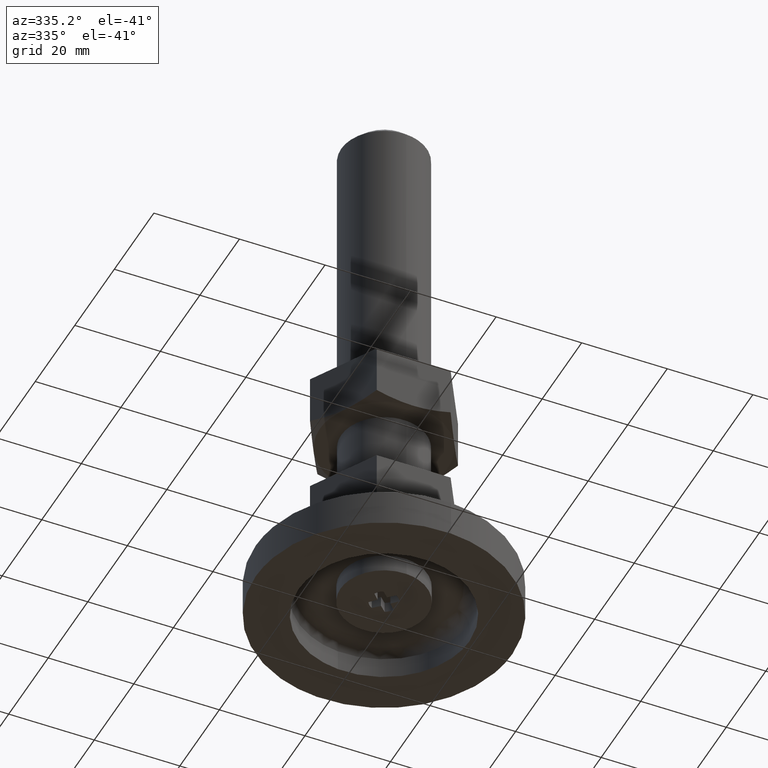
[diagram: clean part render]
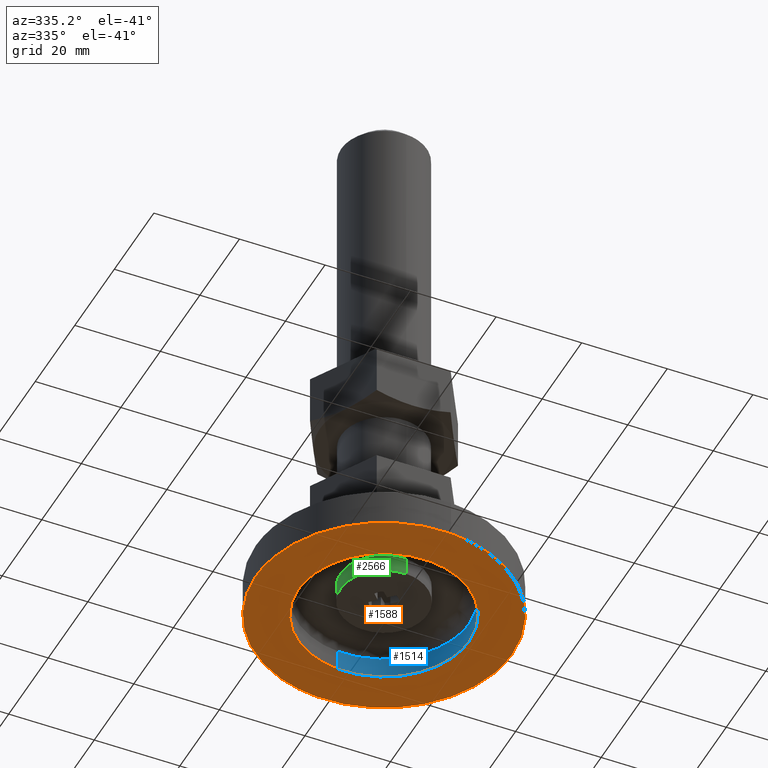
[diagram: same view with three faces highlighted in distinct colors, each labeled with its STEP entity id]
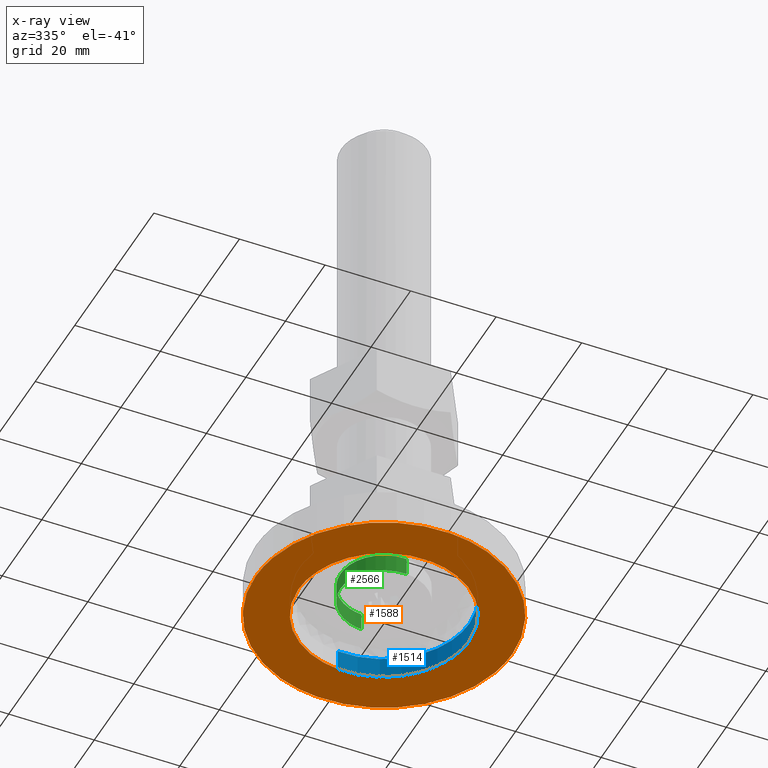
[diagram: x-ray of the same camera — body ghosted, the three highlighted faces saturated]
A machine part, auxiliary view with three faces highlighted in distinct colors.
The next image is the same camera in x-ray (body ghosted, the three faces saturated) — at least one of them is partly hidden behind the body in this view.
Their STEP definitions:

[orange] entity #1588 — the highlighted face is a freeform B-spline surface patch.
#1343=CARTESIAN_POINT('',(-1.831421611323587,29.944046067296529,-6.938894E-016));
#1344=VERTEX_POINT('',#1343);
#1352=CARTESIAN_POINT('',(1.831421611323591,-29.944046067296529,-6.938894E-016));
#1353=VERTEX_POINT('',#1352);
#1359=CARTESIAN_POINT('',(30.0,0.0,0.0));
#1360=VERTEX_POINT('',#1359);
#1361=CARTESIAN_POINT('',(30.0,0.0,0.0));
#1362=CARTESIAN_POINT('',(29.999999999999385,-28.221214653497508,-3.469447E-016));
#1363=CARTESIAN_POINT('',(1.831421611323591,-29.944046067296529,-6.938894E-016));
#1371=(BOUNDED_CURVE()B_SPLINE_CURVE(2,(#1361,#1362,#1363),.UNSPECIFIED.,.F.,.U.)B_SPLINE_CURVE_WITH_KNOTS((3,3),(0.500000000000000,0.739333161472179),.UNSPECIFIED.)CURVE()GEOMETRIC_REPRESENTATION_ITEM()RATIONAL_B_SPLINE_CURVE((1.0,0.719603759870454,0.976072468661841))REPRESENTATION_ITEM(''));
#1372=EDGE_CURVE('',#1360,#1353,#1371,.T.);
#1374=CARTESIAN_POINT('',(-1.831421611323587,29.944046067296526,-6.938894E-016));
#1375=CARTESIAN_POINT('',(-0.916565563124853,29.999999999980322,-6.839180E-016));
#1376=CARTESIAN_POINT('',(1.185255E-012,29.999999999980631,-6.733181E-016));
#1377=CARTESIAN_POINT('',(30.000000000000576,29.999999999990603,-3.263734E-016));
#1378=CARTESIAN_POINT('',(30.0,0.0,0.0));
#1386=(BOUNDED_CURVE()B_SPLINE_CURVE(2,(#1374,#1375,#1376,#1377,#1378),.UNSPECIFIED.,.F.,.U.)B_SPLINE_CURVE_WITH_KNOTS((3,2,3),(0.239333161472179,0.250000000000000,0.500000000000000),.UNSPECIFIED.)CURVE()GEOMETRIC_REPRESENTATION_ITEM()RATIONAL_B_SPLINE_CURVE((0.976072468661841,0.987503021316093,1.0,0.707106781186547,1.0))REPRESENTATION_ITEM(''));
#1387=EDGE_CURVE('',#1344,#1360,#1386,.T.);
#1411=CARTESIAN_POINT('',(-30.0,0.0,0.0));
#1412=VERTEX_POINT('',#1411);
#1413=CARTESIAN_POINT('',(-30.0,0.0,0.0));
#1414=CARTESIAN_POINT('',(-29.999999999999385,28.221214653497508,-3.469447E-016));
#1415=CARTESIAN_POINT('',(-1.831421611323587,29.944046067296526,-6.938894E-016));
#1423=(BOUNDED_CURVE()B_SPLINE_CURVE(2,(#1413,#1414,#1415),.UNSPECIFIED.,.F.,.U.)B_SPLINE_CURVE_WITH_KNOTS((3,3),(0.0,0.239333161472179),.UNSPECIFIED.)CURVE()GEOMETRIC_REPRESENTATION_ITEM()RATIONAL_B_SPLINE_CURVE((1.0,0.719603759870454,0.976072468661841))REPRESENTATION_ITEM(''));
#1424=EDGE_CURVE('',#1412,#1344,#1423,.T.);
#1426=CARTESIAN_POINT('',(1.831421611323591,-29.944046067296529,-6.938894E-016));
#1427=CARTESIAN_POINT('',(0.916565563124852,-29.999999999980322,-6.839180E-016));
#1428=CARTESIAN_POINT('',(-1.191288E-012,-29.999999999980631,-6.733181E-016));
#1429=CARTESIAN_POINT('',(-30.000000000000576,-29.999999999990603,-3.263734E-016));
#1430=CARTESIAN_POINT('',(-30.0,0.0,0.0));
#1438=(BOUNDED_CURVE()B_SPLINE_CURVE(2,(#1426,#1427,#1428,#1429,#1430),.UNSPECIFIED.,.F.,.U.)B_SPLINE_CURVE_WITH_KNOTS((3,2,3),(0.739333161472179,0.750000000000000,1.0),.UNSPECIFIED.)CURVE()GEOMETRIC_REPRESENTATION_ITEM()RATIONAL_B_SPLINE_CURVE((0.976072468661841,0.987503021316093,1.0,0.707106781186547,1.0))REPRESENTATION_ITEM(''));
#1439=EDGE_CURVE('',#1353,#1412,#1438,.T.);
#1466=CARTESIAN_POINT('',(-1.569150497991308,19.938349147150081,-3.191891E-016));
#1467=VERTEX_POINT('',#1466);
#1473=CARTESIAN_POINT('',(20.0,0.0,0.0));
#1474=VERTEX_POINT('',#1473);
#1475=CARTESIAN_POINT('',(-1.569150497991308,19.938349147150078,-3.191891E-016));
#1476=CARTESIAN_POINT('',(-0.785786358973947,19.999999999975689,-3.133928E-016));
#1477=CARTESIAN_POINT('',(1.872432E-012,19.999999999976179,-3.071225E-016));
#1478=CARTESIAN_POINT('',(20.000000000000902,19.999999999988557,-1.475279E-016));
#1479=CARTESIAN_POINT('',(20.0,0.0,0.0));
#1487=(BOUNDED_CURVE()B_SPLINE_CURVE(2,(#1475,#1476,#1477,#1478,#1479),.UNSPECIFIED.,.F.,.U.)B_SPLINE_CURVE_WITH_KNOTS((3,2,3),(0.236331570743911,0.250000000000000,0.500000000000000),.UNSPECIFIED.)CURVE()GEOMETRIC_REPRESENTATION_ITEM()RATIONAL_B_SPLINE_CURVE((0.969723919873852,0.983986439036241,1.0,0.707106781186548,1.0))REPRESENTATION_ITEM(''));
#1488=EDGE_CURVE('',#1467,#1474,#1487,.T.);
#1490=CARTESIAN_POINT('',(1.569150497991308,-19.938349147150081,-1.387779E-017));
#1491=VERTEX_POINT('',#1490);
#1492=CARTESIAN_POINT('',(20.0,0.0,0.0));
#1493=CARTESIAN_POINT('',(19.999999999999034,-18.487839054223780,-6.938894E-018));
#1494=CARTESIAN_POINT('',(1.569150497991307,-19.938349147150074,-1.387779E-017));
#1502=(BOUNDED_CURVE()B_SPLINE_CURVE(2,(#1492,#1493,#1494),.UNSPECIFIED.,.F.,.U.)B_SPLINE_CURVE_WITH_KNOTS((3,3),(0.500000000000000,0.736331570743911),.UNSPECIFIED.)CURVE()GEOMETRIC_REPRESENTATION_ITEM()RATIONAL_B_SPLINE_CURVE((1.0,0.723120342150307,0.969723919873852))REPRESENTATION_ITEM(''));
#1503=EDGE_CURVE('',#1474,#1491,#1502,.T.);
#1537=CARTESIAN_POINT('',(-20.0,0.0,0.0));
#1538=VERTEX_POINT('',#1537);
#1539=CARTESIAN_POINT('',(1.569150497991307,-19.938349147150074,-1.387779E-017));
#1540=CARTESIAN_POINT('',(0.785786358973949,-19.999999999975689,-1.362578E-017));
#1541=CARTESIAN_POINT('',(-1.869655E-012,-19.999999999976179,-1.335315E-017));
#1542=CARTESIAN_POINT('',(-20.000000000000902,-19.999999999988557,-6.414258E-018));
#1543=CARTESIAN_POINT('',(-20.0,0.0,0.0));
#1551=(BOUNDED_CURVE()B_SPLINE_CURVE(2,(#1539,#1540,#1541,#1542,#1543),.UNSPECIFIED.,.F.,.U.)B_SPLINE_CURVE_WITH_KNOTS((3,2,3),(0.736331570743911,0.750000000000000,1.0),.UNSPECIFIED.)CURVE()GEOMETRIC_REPRESENTATION_ITEM()RATIONAL_B_SPLINE_CURVE((0.969723919873852,0.983986439036241,1.0,0.707106781186548,1.0))REPRESENTATION_ITEM(''));
#1552=EDGE_CURVE('',#1491,#1538,#1551,.T.);
#1554=CARTESIAN_POINT('',(-20.0,0.0,0.0));
#1555=CARTESIAN_POINT('',(-19.999999999999030,18.487839054223763,-1.595946E-016));
#1556=CARTESIAN_POINT('',(-1.569150497991308,19.938349147150078,-3.191891E-016));
#1564=(BOUNDED_CURVE()B_SPLINE_CURVE(2,(#1554,#1555,#1556),.UNSPECIFIED.,.F.,.U.)B_SPLINE_CURVE_WITH_KNOTS((3,3),(0.0,0.236331570743911),.UNSPECIFIED.)CURVE()GEOMETRIC_REPRESENTATION_ITEM()RATIONAL_B_SPLINE_CURVE((1.0,0.723120342150307,0.969723919873852))REPRESENTATION_ITEM(''));
#1565=EDGE_CURVE('',#1538,#1467,#1564,.T.);
#1571=CARTESIAN_POINT('',(-32.996999883708362,-32.996261619275778,0.0));
#1572=CARTESIAN_POINT('',(32.997001493033771,-32.996261619275778,0.0));
#1573=CARTESIAN_POINT('',(-32.996999883708362,32.996260546392179,0.0));
#1574=CARTESIAN_POINT('',(32.997001493033771,32.996260546392179,0.0));
#1575=B_SPLINE_SURFACE_WITH_KNOTS('',1,1,((#1571,#1573),(#1572,#1574)),.UNSPECIFIED.,.F.,.F.,.U.,(2,2),(2,2),(0.0,65.994001376742119),(0.0,65.992522165667964),.UNSPECIFIED.);
#1576=ORIENTED_EDGE('',*,*,#1424,.T.);
#1577=ORIENTED_EDGE('',*,*,#1387,.T.);
#1578=ORIENTED_EDGE('',*,*,#1372,.T.);
#1579=ORIENTED_EDGE('',*,*,#1439,.T.);
#1580=EDGE_LOOP('',(#1576,#1577,#1578,#1579));
#1581=FACE_OUTER_BOUND('',#1580,.T.);
#1582=ORIENTED_EDGE('',*,*,#1503,.F.);
#1583=ORIENTED_EDGE('',*,*,#1488,.F.);
#1584=ORIENTED_EDGE('',*,*,#1565,.F.);
#1585=ORIENTED_EDGE('',*,*,#1552,.F.);
#1586=EDGE_LOOP('',(#1582,#1583,#1584,#1585));
#1587=FACE_BOUND('',#1586,.T.);
#1588=ADVANCED_FACE('',(#1581,#1587),#1575,.F.);

[blue] entity #1514 — the highlighted face is a freeform B-spline surface patch.
#1195=CARTESIAN_POINT('',(-1.569150114584247,19.938349177323641,5.000000000271262));
#1196=VERTEX_POINT('',#1195);
#1210=CARTESIAN_POINT('',(19.998420884075149,0.251320797760808,5.000000000582528));
#1211=VERTEX_POINT('',#1210);
#1212=CARTESIAN_POINT('',(-1.569150114584246,19.938349177323648,5.000000000271263));
#1213=CARTESIAN_POINT('',(-0.785786166380793,19.999999999975103,5.000000000282658));
#1214=CARTESIAN_POINT('',(1.920519E-012,19.999999999975600,5.000000000294080));
#1215=CARTESIAN_POINT('',(19.750238598054608,19.999999999988276,5.000000000581196));
#1216=CARTESIAN_POINT('',(19.998420884075149,0.251320797760808,5.000000000582529));
#1224=(BOUNDED_CURVE()B_SPLINE_CURVE(2,(#1212,#1213,#1214,#1215,#1216),.UNSPECIFIED.,.F.,.U.)B_SPLINE_CURVE_WITH_KNOTS((3,2,3),(0.236331574040342,0.250000000000000,0.497784295920904),.UNSPECIFIED.)CURVE()GEOMETRIC_REPRESENTATION_ITEM()RATIONAL_B_SPLINE_CURVE((0.969723926753268,0.983986442898250,1.0,0.709702639985206,0.994854295642115))REPRESENTATION_ITEM(''));
#1225=EDGE_CURVE('',#1196,#1211,#1224,.T.);
#1276=CARTESIAN_POINT('',(20.0,0.0,5.0));
#1277=VERTEX_POINT('',#1276);
#1278=CARTESIAN_POINT('',(19.998420884075149,0.251320797760808,5.000000000582529));
#1279=CARTESIAN_POINT('',(20.0,0.125665359884679,5.000000000291264));
#1280=CARTESIAN_POINT('',(20.0,0.0,5.0));
#1288=(BOUNDED_CURVE()B_SPLINE_CURVE(2,(#1278,#1279,#1280),.UNSPECIFIED.,.F.,.U.)B_SPLINE_CURVE_WITH_KNOTS((3,3),(0.497784295920904,0.500000000000000),.UNSPECIFIED.)CURVE()GEOMETRIC_REPRESENTATION_ITEM()RATIONAL_B_SPLINE_CURVE((0.994854295642115,0.997404141201342,1.0))REPRESENTATION_ITEM(''));
#1289=EDGE_CURVE('',#1211,#1277,#1288,.T.);
#1291=CARTESIAN_POINT('',(1.569150114584243,-19.938349177323651,5.000000000271262));
#1292=VERTEX_POINT('',#1291);
#1293=CARTESIAN_POINT('',(20.0,0.0,5.0));
#1294=CARTESIAN_POINT('',(19.999999999999005,-18.487839410837001,5.000000000002204));
#1295=CARTESIAN_POINT('',(1.569150114584243,-19.938349177323651,5.000000000271262));
#1303=(BOUNDED_CURVE()B_SPLINE_CURVE(2,(#1293,#1294,#1295),.UNSPECIFIED.,.F.,.U.)B_SPLINE_CURVE_WITH_KNOTS((3,3),(0.500000000000000,0.736331574040342),.UNSPECIFIED.)CURVE()GEOMETRIC_REPRESENTATION_ITEM()RATIONAL_B_SPLINE_CURVE((1.0,0.723120338288297,0.969723926753268))REPRESENTATION_ITEM(''));
#1304=EDGE_CURVE('',#1277,#1292,#1303,.T.);
#1447=CARTESIAN_POINT('',(-1.569181914556897,19.938346674662551,5.125000000597091));
#1448=CARTESIAN_POINT('',(18.369164760105654,21.507528589219444,5.125000000597092));
#1449=CARTESIAN_POINT('',(19.938346674662551,1.569181914556897,5.125000000597091));
#1450=CARTESIAN_POINT('',(21.507528589219444,-18.369164760105654,5.125000000597092));
#1451=CARTESIAN_POINT('',(1.569181914556897,-19.938346674662551,5.125000000597091));
#1452=CARTESIAN_POINT('',(-1.569181914556897,19.938346674662551,-0.128125000014927));
#1453=CARTESIAN_POINT('',(18.369164760105654,21.507528589219444,-0.128125000014927));
#1454=CARTESIAN_POINT('',(19.938346674662551,1.569181914556897,-0.128125000014927));
#1455=CARTESIAN_POINT('',(21.507528589219444,-18.369164760105654,-0.128125000014927));
#1456=CARTESIAN_POINT('',(1.569181914556897,-19.938346674662551,-0.128125000014927));
#1464=(BOUNDED_SURFACE()B_SPLINE_SURFACE(2,1,((#1447,#1452),(#1448,#1453),(#1449,#1454),(#1450,#1455),(#1451,#1456)),.UNSPECIFIED.,.F.,.F.,.U.)B_SPLINE_SURFACE_WITH_KNOTS((3,2,3),(2,2),(0.0,33.137084989847587,66.274169979695188),(0.0,5.253125000612020),.UNSPECIFIED.)GEOMETRIC_REPRESENTATION_ITEM()RATIONAL_B_SPLINE_SURFACE(((1.0,1.0),(0.707106781186548,0.707106781186548),(1.0,1.0),(0.707106781186548,0.707106781186548),(1.0,1.0)))REPRESENTATION_ITEM('')SURFACE());
#1465=ORIENTED_EDGE('',*,*,#1225,.F.);
#1466=CARTESIAN_POINT('',(-1.569150497991308,19.938349147150081,-3.191891E-016));
#1467=VERTEX_POINT('',#1466);
#1468=CARTESIAN_POINT('',(-1.569150114584247,19.938349177323641,5.000000000271262));
#1469=CARTESIAN_POINT('',(-1.569150497991308,19.938349147150081,-3.191891E-016));
#1470=QUASI_UNIFORM_CURVE('',1,(#1468,#1469),.UNSPECIFIED.,.F.,.U.);
#1471=EDGE_CURVE('',#1196,#1467,#1470,.T.);
#1472=ORIENTED_EDGE('',*,*,#1471,.T.);
#1473=CARTESIAN_POINT('',(20.0,0.0,0.0));
#1474=VERTEX_POINT('',#1473);
#1475=CARTESIAN_POINT('',(-1.569150497991308,19.938349147150078,-3.191891E-016));
#1476=CARTESIAN_POINT('',(-0.785786358973947,19.999999999975689,-3.133928E-016));
#1477=CARTESIAN_POINT('',(1.872432E-012,19.999999999976179,-3.071225E-016));
#1478=CARTESIAN_POINT('',(20.000000000000902,19.999999999988557,-1.475279E-016));
#1479=CARTESIAN_POINT('',(20.0,0.0,0.0));
#1487=(BOUNDED_CURVE()B_SPLINE_CURVE(2,(#1475,#1476,#1477,#1478,#1479),.UNSPECIFIED.,.F.,.U.)B_SPLINE_CURVE_WITH_KNOTS((3,2,3),(0.236331570743911,0.250000000000000,0.500000000000000),.UNSPECIFIED.)CURVE()GEOMETRIC_REPRESENTATION_ITEM()RATIONAL_B_SPLINE_CURVE((0.969723919873852,0.983986439036241,1.0,0.707106781186548,1.0))REPRESENTATION_ITEM(''));
#1488=EDGE_CURVE('',#1467,#1474,#1487,.T.);
#1489=ORIENTED_EDGE('',*,*,#1488,.T.);
#1490=CARTESIAN_POINT('',(1.569150497991308,-19.938349147150081,-1.387779E-017));
#1491=VERTEX_POINT('',#1490);
#1492=CARTESIAN_POINT('',(20.0,0.0,0.0));
#1493=CARTESIAN_POINT('',(19.999999999999034,-18.487839054223780,-6.938894E-018));
#1494=CARTESIAN_POINT('',(1.569150497991307,-19.938349147150074,-1.387779E-017));
#1502=(BOUNDED_CURVE()B_SPLINE_CURVE(2,(#1492,#1493,#1494),.UNSPECIFIED.,.F.,.U.)B_SPLINE_CURVE_WITH_KNOTS((3,3),(0.500000000000000,0.736331570743911),.UNSPECIFIED.)CURVE()GEOMETRIC_REPRESENTATION_ITEM()RATIONAL_B_SPLINE_CURVE((1.0,0.723120342150307,0.969723919873852))REPRESENTATION_ITEM(''));
#1503=EDGE_CURVE('',#1474,#1491,#1502,.T.);
#1504=ORIENTED_EDGE('',*,*,#1503,.T.);
#1505=CARTESIAN_POINT('',(1.569150114584243,-19.938349177323651,5.000000000271262));
#1506=CARTESIAN_POINT('',(1.569150497991308,-19.938349147150081,-1.387779E-017));
#1507=QUASI_UNIFORM_CURVE('',1,(#1505,#1506),.UNSPECIFIED.,.F.,.U.);
#1508=EDGE_CURVE('',#1292,#1491,#1507,.T.);
#1509=ORIENTED_EDGE('',*,*,#1508,.F.);
#1510=ORIENTED_EDGE('',*,*,#1304,.F.);
#1511=ORIENTED_EDGE('',*,*,#1289,.F.);
#1512=EDGE_LOOP('',(#1465,#1472,#1489,#1504,#1509,#1510,#1511));
#1513=FACE_OUTER_BOUND('',#1512,.T.);
#1514=ADVANCED_FACE('',(#1513),#1464,.F.);

[green] entity #2566 — the highlighted face is a freeform B-spline surface patch.
#2356=CARTESIAN_POINT('',(-10.150000000000000,0.0,3.800000000000000));
#2357=VERTEX_POINT('',#2356);
#2358=CARTESIAN_POINT('',(-0.619642676335442,10.131068203978479,3.800000000000000));
#2359=VERTEX_POINT('',#2358);
#2360=CARTESIAN_POINT('',(-10.150000000000000,0.0,3.800000000000000));
#2361=CARTESIAN_POINT('',(-10.149999999999997,9.548166579039314,3.800000000000000));
#2362=CARTESIAN_POINT('',(-0.619642676335442,10.131068203978483,3.799999999999999));
#2370=(BOUNDED_CURVE()B_SPLINE_CURVE(2,(#2360,#2361,#2362),.UNSPECIFIED.,.F.,.U.)B_SPLINE_CURVE_WITH_KNOTS((3,3),(0.0,0.239332962241004),.UNSPECIFIED.)CURVE()GEOMETRIC_REPRESENTATION_ITEM()RATIONAL_B_SPLINE_CURVE((1.0,0.719603993284296,0.976072041671134))REPRESENTATION_ITEM(''));
#2371=EDGE_CURVE('',#2357,#2359,#2370,.T.);
#2390=CARTESIAN_POINT('',(0.619642676335442,-10.131068203978479,3.800000000000000));
#2391=VERTEX_POINT('',#2390);
#2405=CARTESIAN_POINT('',(0.619642676335444,-10.131068203978483,3.799999999999999));
#2406=CARTESIAN_POINT('',(0.310110547509080,-10.149999999999997,3.800000000000000));
#2407=CARTESIAN_POINT('',(0.0,-10.150000000000000,3.800000000000000));
#2408=CARTESIAN_POINT('',(-10.149999999999999,-10.149999999999999,3.800000000000000));
#2409=CARTESIAN_POINT('',(-10.150000000000000,0.0,3.800000000000000));
#2417=(BOUNDED_CURVE()B_SPLINE_CURVE(2,(#2405,#2406,#2407,#2408,#2409),.UNSPECIFIED.,.F.,.U.)B_SPLINE_CURVE_WITH_KNOTS((3,2,3),(0.739332962241004,0.750000000000000,1.0),.UNSPECIFIED.)CURVE()GEOMETRIC_REPRESENTATION_ITEM()RATIONAL_B_SPLINE_CURVE((0.976072041671134,0.987502787902252,1.0,0.707106781186548,1.0))REPRESENTATION_ITEM(''));
#2418=EDGE_CURVE('',#2391,#2357,#2417,.T.);
#2464=CARTESIAN_POINT('',(-0.619642676335442,10.131068203978479,8.0));
#2465=VERTEX_POINT('',#2464);
#2466=CARTESIAN_POINT('',(-0.619642676335442,10.131068203978479,8.0));
#2467=CARTESIAN_POINT('',(-0.619642676335442,10.131068203978479,3.800000000000000));
#2468=QUASI_UNIFORM_CURVE('',1,(#2466,#2467),.UNSPECIFIED.,.F.,.U.);
#2469=EDGE_CURVE('',#2465,#2359,#2468,.T.);
#2488=CARTESIAN_POINT('',(0.619642676335442,-10.131068203978479,8.0));
#2489=VERTEX_POINT('',#2488);
#2503=CARTESIAN_POINT('',(0.619642676335442,-10.131068203978479,8.0));
#2504=CARTESIAN_POINT('',(0.619642676335442,-10.131068203978479,3.800000000000000));
#2505=QUASI_UNIFORM_CURVE('',1,(#2503,#2504),.UNSPECIFIED.,.F.,.U.);
#2506=EDGE_CURVE('',#2489,#2391,#2505,.T.);
#2512=CARTESIAN_POINT('',(0.619642676278798,-10.131068203981950,8.105000000000000));
#2513=CARTESIAN_POINT('',(-9.511425527703146,-10.750710880260746,8.105000000000000));
#2514=CARTESIAN_POINT('',(-10.131068203981950,-0.619642676278798,8.105000000000000));
#2515=CARTESIAN_POINT('',(-10.750710880260746,9.511425527703146,8.105000000000000));
#2516=CARTESIAN_POINT('',(-0.619642676278798,10.131068203981950,8.105000000000000));
#2517=CARTESIAN_POINT('',(0.619642676278798,-10.131068203981950,3.692374999999998));
#2518=CARTESIAN_POINT('',(-9.511425527703146,-10.750710880260746,3.692374999999998));
#2519=CARTESIAN_POINT('',(-10.131068203981950,-0.619642676278798,3.692374999999998));
#2520=CARTESIAN_POINT('',(-10.750710880260746,9.511425527703146,3.692374999999998));
#2521=CARTESIAN_POINT('',(-0.619642676278798,10.131068203981950,3.692374999999998));
#2529=(BOUNDED_SURFACE()B_SPLINE_SURFACE(2,1,((#2512,#2517),(#2513,#2518),(#2514,#2519),(#2515,#2520),(#2516,#2521)),.UNSPECIFIED.,.F.,.F.,.U.)B_SPLINE_SURFACE_WITH_KNOTS((3,2,3),(2,2),(0.0,16.817070632347651,33.634141264695302),(0.0,4.412625000000003),.UNSPECIFIED.)GEOMETRIC_REPRESENTATION_ITEM()RATIONAL_B_SPLINE_SURFACE(((1.0,1.0),(0.707106781186548,0.707106781186548),(1.0,1.0),(0.707106781186548,0.707106781186548),(1.0,1.0)))REPRESENTATION_ITEM('')SURFACE());
#2530=ORIENTED_EDGE('',*,*,#2371,.F.);
#2531=ORIENTED_EDGE('',*,*,#2418,.F.);
#2532=ORIENTED_EDGE('',*,*,#2506,.F.);
#2533=CARTESIAN_POINT('',(-10.150000000000000,0.0,8.0));
#2534=VERTEX_POINT('',#2533);
#2535=CARTESIAN_POINT('',(0.619642676335444,-10.131068203978483,8.0));
#2536=CARTESIAN_POINT('',(0.310110547509080,-10.149999999999997,8.0));
#2537=CARTESIAN_POINT('',(0.0,-10.150000000000000,8.0));
#2538=CARTESIAN_POINT('',(-10.149999999999999,-10.149999999999999,8.0));
#2539=CARTESIAN_POINT('',(-10.150000000000000,0.0,8.0));
#2547=(BOUNDED_CURVE()B_SPLINE_CURVE(2,(#2535,#2536,#2537,#2538,#2539),.UNSPECIFIED.,.F.,.U.)B_SPLINE_CURVE_WITH_KNOTS((3,2,3),(0.739332962241004,0.750000000000000,1.0),.UNSPECIFIED.)CURVE()GEOMETRIC_REPRESENTATION_ITEM()RATIONAL_B_SPLINE_CURVE((0.976072041671134,0.987502787902252,1.0,0.707106781186548,1.0))REPRESENTATION_ITEM(''));
#2548=EDGE_CURVE('',#2489,#2534,#2547,.T.);
#2549=ORIENTED_EDGE('',*,*,#2548,.T.);
#2550=CARTESIAN_POINT('',(-10.150000000000000,0.0,8.0));
#2551=CARTESIAN_POINT('',(-10.149999999999997,9.548166579039314,8.0));
#2552=CARTESIAN_POINT('',(-0.619642676335442,10.131068203978483,8.0));
#2560=(BOUNDED_CURVE()B_SPLINE_CURVE(2,(#2550,#2551,#2552),.UNSPECIFIED.,.F.,.U.)B_SPLINE_CURVE_WITH_KNOTS((3,3),(0.0,0.239332962241004),.UNSPECIFIED.)CURVE()GEOMETRIC_REPRESENTATION_ITEM()RATIONAL_B_SPLINE_CURVE((1.0,0.719603993284296,0.976072041671134))REPRESENTATION_ITEM(''));
#2561=EDGE_CURVE('',#2534,#2465,#2560,.T.);
#2562=ORIENTED_EDGE('',*,*,#2561,.T.);
#2563=ORIENTED_EDGE('',*,*,#2469,.T.);
#2564=EDGE_LOOP('',(#2530,#2531,#2532,#2549,#2562,#2563));
#2565=FACE_OUTER_BOUND('',#2564,.T.);
#2566=ADVANCED_FACE('',(#2565),#2529,.T.);